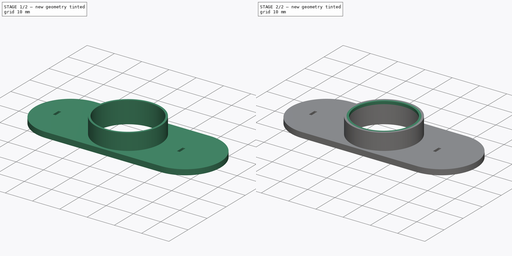
[diagram: build sequence overview — one tinted view per stage of 2, left to right]
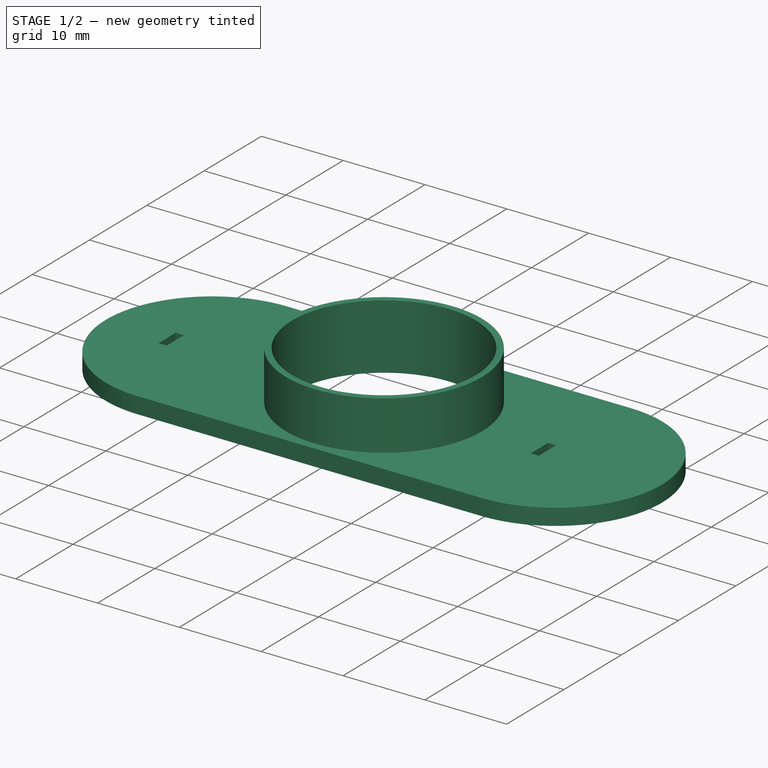
[diagram: stage 1 of 2 — iso view after this stage's code; geometry added in this stage tinted green]
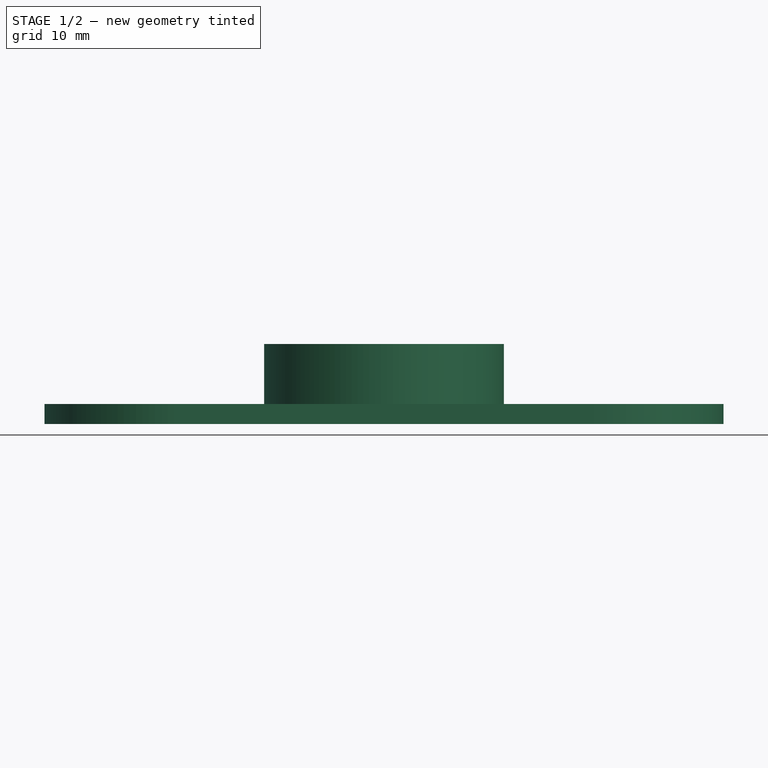
[diagram: stage 1 of 2 — front view after this stage's code; geometry added in this stage tinted green]
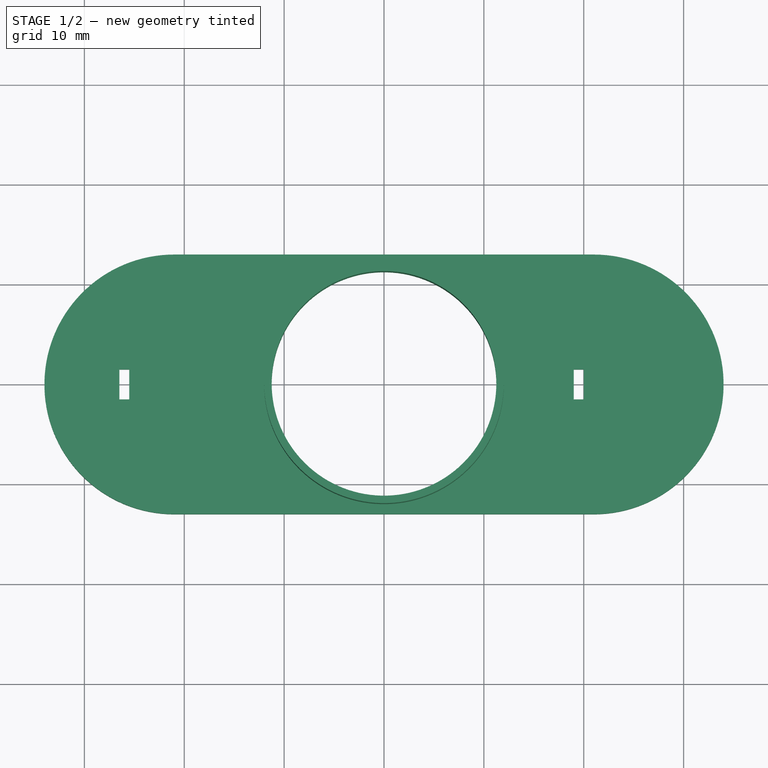
[diagram: stage 1 of 2 — top view after this stage's code; geometry added in this stage tinted green]
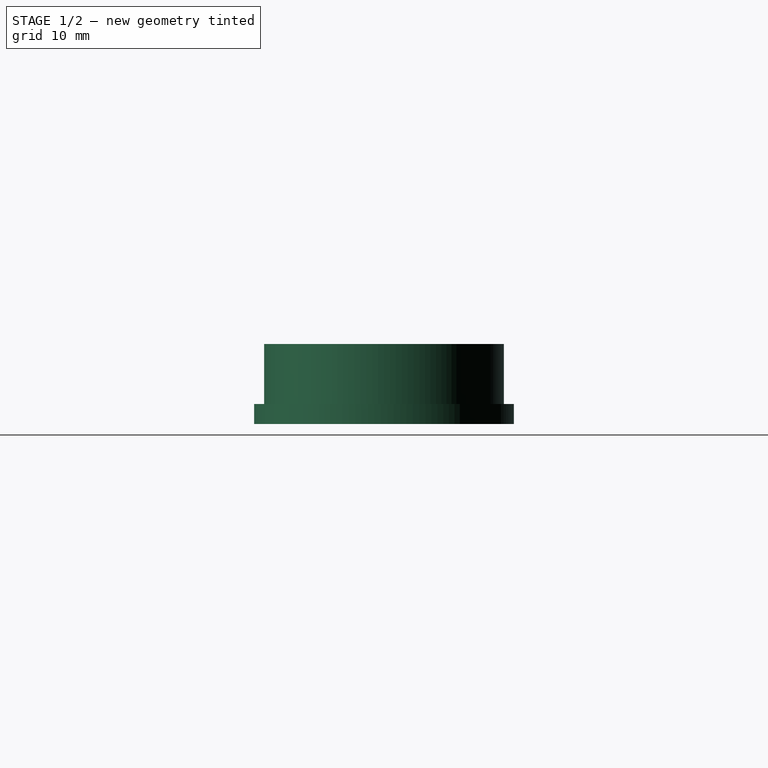
[diagram: stage 1 of 2 — right view after this stage's code; geometry added in this stage tinted green]
FCSTD DOCUMENT  (FreeCAD 0.20R29603 (Git))
Label: cutter
License: All rights reserved
LicenseURL: http://en.wikipedia.org/wiki/All_rights_reserved
objects: Sketcher::SketchObject×3, PartDesign::Pad×3, PartDesign::Body×1, Part::Refine×1
note: 11 computed .brp shape members not serialized (recipe doc carries the construction recipe); baked Part::Feature solids carry a one-line shape summary decoded from their .brp

FEATURE [Sketcher::SketchObject] Sketch059
  FullyConstrained = false
  MapMode = 5
  Support = -> [XY_Plane017]
  sketch-geometry (17):
    g0: Circle CenterX=0 CenterY=0 CenterZ=0 NormalX=0 NormalY=0 NormalZ=1 AngleXU=0 Radius=25.5
    g1: Circle CenterX=0 CenterY=0 CenterZ=0 NormalX=0 NormalY=0 NormalZ=1 AngleXU=0 Radius=19
    g2: LineSegment StartX=-26.5 StartY=1.5 StartZ=0 EndX=-25.5 EndY=1.5 EndZ=0
    g3: LineSegment StartX=-26.5 StartY=-1.5 StartZ=0 EndX=-26.5 EndY=1.5 EndZ=0
    g4: Circle CenterX=0 CenterY=0 CenterZ=0 NormalX=0 NormalY=0 NormalZ=1 AngleXU=0 Radius=11.25
    g5: ArcOfCircle CenterX=-21 CenterY=-1e-16 CenterZ=0 NormalX=0 NormalY=0 NormalZ=1 AngleXU=0 Radius=13 StartAngle=1.5708 EndAngle=4.71239
    g6: LineSegment StartX=-21 StartY=13.892 StartZ=0 EndX=-21 EndY=-12.108 EndZ=0
    g7: ArcOfCircle CenterX=21 CenterY=-8e-16 CenterZ=0 NormalX=0 NormalY=0 NormalZ=1 AngleXU=0 Radius=13 StartAngle=4.71239 EndAngle=7.85398
    g8: LineSegment StartX=-21 StartY=-13 StartZ=0 EndX=21 EndY=-13 EndZ=0
    g9: LineSegment StartX=21 StartY=13 StartZ=0 EndX=-21 EndY=13 EndZ=0
    g10: LineSegment StartX=21 StartY=13 StartZ=0 EndX=21 EndY=-13 EndZ=0
    g11: LineSegment StartX=-25.5 StartY=1.5 StartZ=0 EndX=-25.5 EndY=-1.5 EndZ=0
    g12: LineSegment StartX=20 StartY=1.5 StartZ=0 EndX=19 EndY=1.5 EndZ=0
    g13: LineSegment StartX=20 StartY=-1.5 StartZ=0 EndX=20 EndY=1.5 EndZ=0
    g14: LineSegment StartX=19 StartY=1.5 StartZ=0 EndX=19 EndY=-1.5 EndZ=0
    g15: LineSegment StartX=-25.5 StartY=-1.5 StartZ=0 EndX=-26.5 EndY=-1.5 EndZ=0
    g16: LineSegment StartX=19 StartY=-1.5 StartZ=0 EndX=20 EndY=-1.5 EndZ=0
  constraints (41):
    c: Radius(g0) = 25.5
    c: Coincident(g1,g0)
    c: Radius(g1) = 19
    c: Coincident(g15,g3)
    c: Coincident(g3,g2)
    c: Horizontal(g2)
    c: Symmetric(g2,g15,g-1)
    c: Radius(g4) = 11.25
    c: Coincident(g4,g0)
    c: Coincident(g4,g-1)
    c: Coincident(g8,g5)
    c: Coincident(g8,g7)
    c: Horizontal(g8)
    c: Coincident(g9,g7)
    c: Coincident(g9,g5)
    c: Coincident(g10,g7)
    c: Coincident(g10,g7)
    c: Vertical(g10)
    c: Symmetric(g5,g7,g-2)
    c: DistanceX(g9,g9) = 42
    c: Equal(g6,g10)
    c: Vertical(g11)
    c: Tangent(g11,g0)
    c: DistanceY(g3,g3) = 3
    c: Coincident(g16,g13)
    c: Coincident(g13,g12)
    c: Horizontal(g12)
    c: Vertical(g14)
    c: Tangent(g14,g1)
    c: Coincident(g2,g11)
    c: Coincident(g15,g11)
    c: Horizontal(g15)
    c: DistanceX(g15,g15) = 1
    c: Coincident(g12,g14)
    c: Coincident(g16,g14)
    c: Equal(g3,g13)
    c: Horizontal(g16)
    c: Symmetric(g12,g13,g-1)
    c: Equal(g16,g15)
    c: Radius(g7) = 13
    c: Symmetric(g5,g5,g-1)
FEATURE [PartDesign::Pad] Pad009027007
  Direction = (0,0,1)
  Length = 2
  Length2 = 10
  Profile = -> Sketch059
  ReferenceAxis = -> Sketch059 [N_Axis]
  Type = 0
FEATURE [Sketcher::SketchObject] Sketch060
  ExternalGeometry = -> [Pad009027007]
  FullyConstrained = false
  MapMode = 5
  Placement = pos=(0,0,0) rot=(1,0,0;3.14159rad)
  sketch-geometry (2):
    g0: Circle CenterX=0 CenterY=0 CenterZ=0 NormalX=0 NormalY=0 NormalZ=1 AngleXU=0 Radius=12
    g1: Circle CenterX=0 CenterY=0 CenterZ=0 NormalX=0 NormalY=0 NormalZ=1 AngleXU=0 Radius=11.25
  constraints (3):
    c: Coincident(g1,g0)
    c: Radius(g0) = 12
    c: Equal(g1,g-3)
FEATURE [PartDesign::Pad] Pad
  BaseFeature = -> Pad009027007
  Direction = (0,0,-1)
  Length = 8
  Length2 = 10
  Profile = -> Sketch060
  ReferenceAxis = -> Sketch060 [N_Axis]
  Reversed = true
  Type = 0
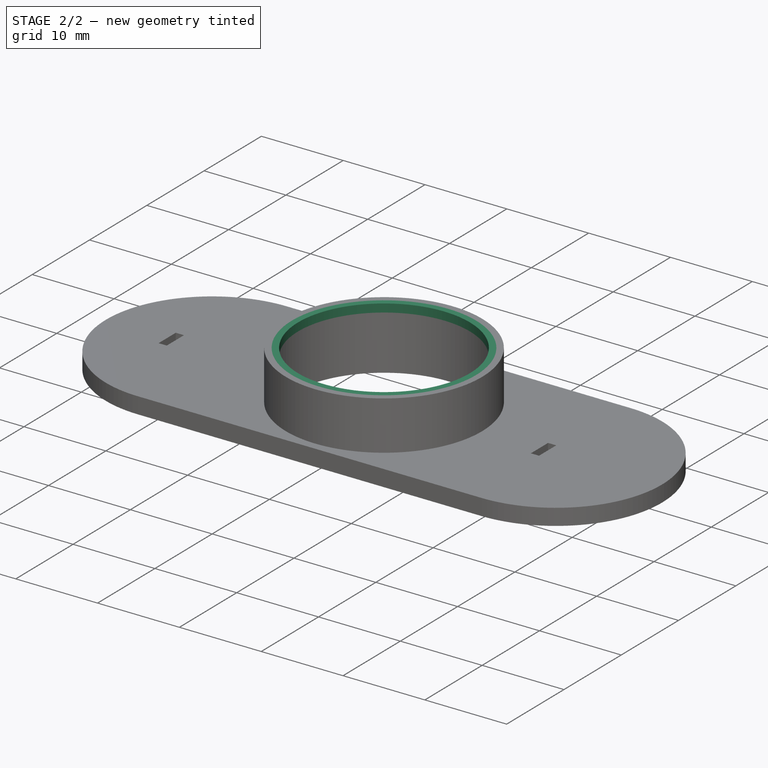
[diagram: stage 2 of 2 — iso view after this stage's code; geometry added in this stage tinted green]
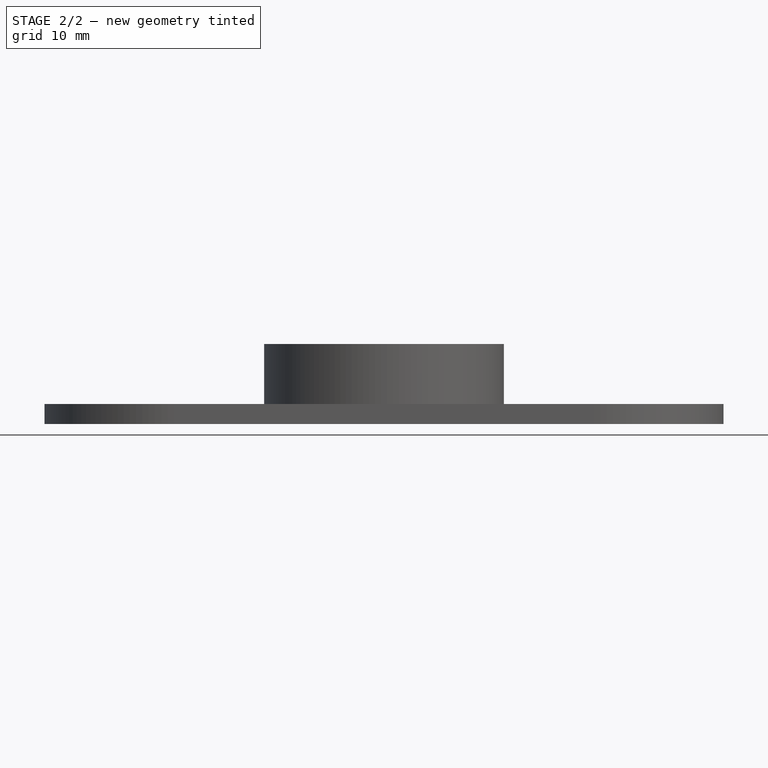
[diagram: stage 2 of 2 — front view after this stage's code; geometry added in this stage tinted green]
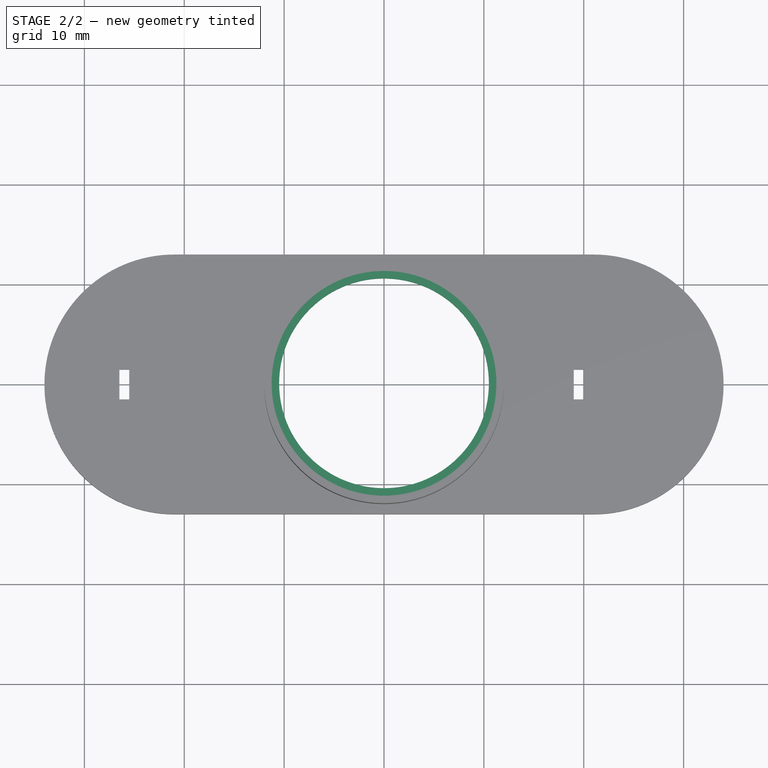
[diagram: stage 2 of 2 — top view after this stage's code; geometry added in this stage tinted green]
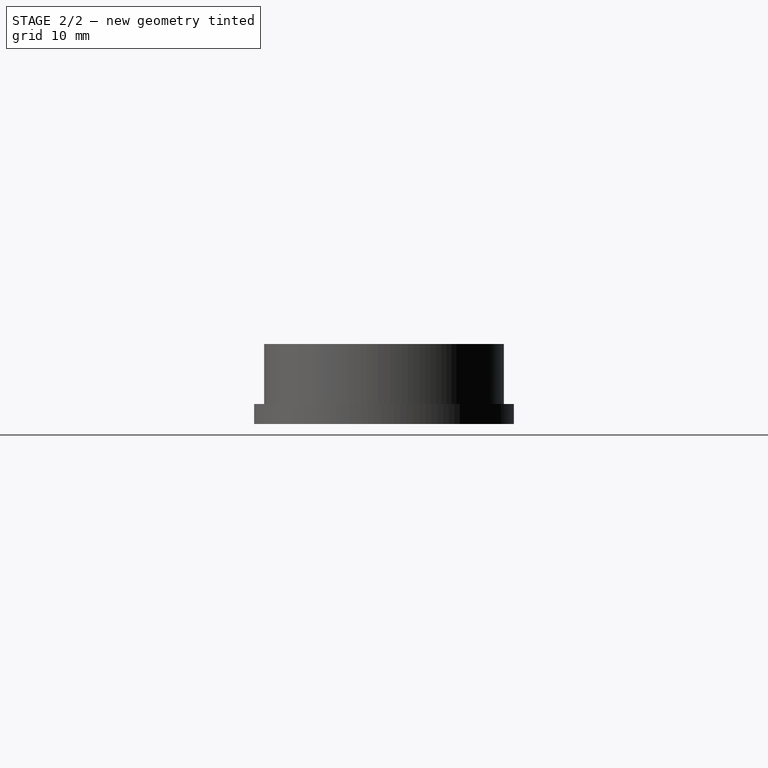
[diagram: stage 2 of 2 — right view after this stage's code; geometry added in this stage tinted green]
FEATURE [Sketcher::SketchObject] Sketch
  ExternalGeometry = -> [Pad]
  FullyConstrained = true
  MapMode = 5
  Placement = pos=(0,0,8) rot=(0,0,1;0rad)
  Support = -> [Pad]
  sketch-geometry (2):
    g0: Circle CenterX=0 CenterY=0 CenterZ=0 NormalX=0 NormalY=0 NormalZ=1 AngleXU=0 Radius=12
    g1: Circle CenterX=0 CenterY=0 CenterZ=0 NormalX=0 NormalY=0 NormalZ=1 AngleXU=0 Radius=10.5
  constraints (4):
    c: Coincident(g0,g-3)
    c: Equal(g0,g-3)
    c: Coincident(g1,g0)
    c: Radius(g1) = 10.5
FEATURE [PartDesign::Pad] Pad009027008
  BaseFeature = -> Pad
  Direction = (0,0,1)
  Length = 1
  Length2 = 10
  Profile = -> Sketch
  ReferenceAxis = -> Sketch [N_Axis]
  Reversed = true
  Type = 0
FEATURE [PartDesign::Body] Body003003011  label="cutter"
  Group = -> [Sketch059,Sketch060,Pad009027007,Pad,Sketch,Pad009027008]
  Origin = -> Origin017
  Tip = -> Pad009027008
FEATURE [Part::Refine] Pad009027008001
  Source = -> Pad009027008
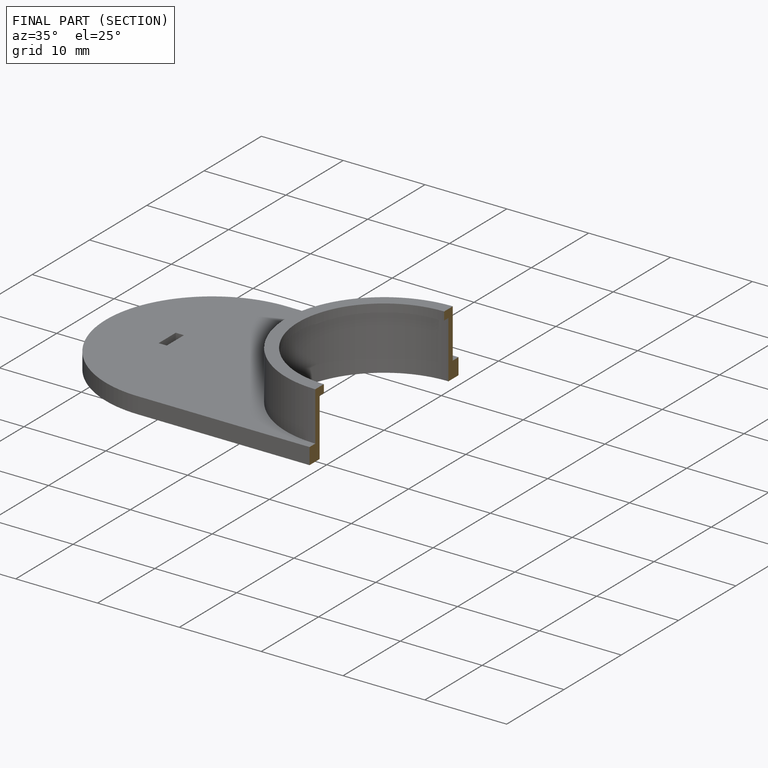
[diagram: finished part — half-section view (interior)]
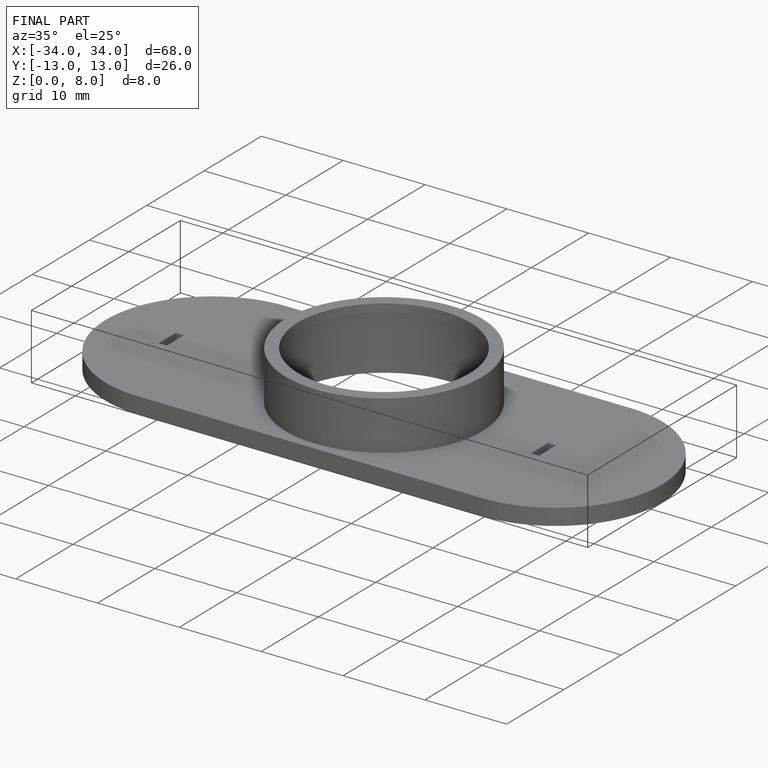
[diagram: finished part — iso view with bounding-box wireframe]
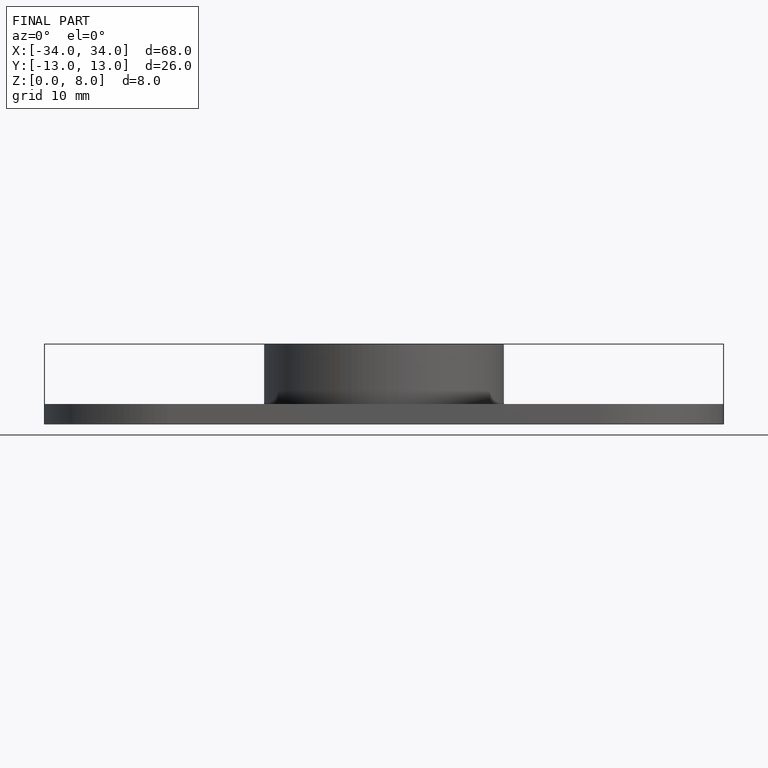
[diagram: finished part — front view with bounding-box wireframe]
